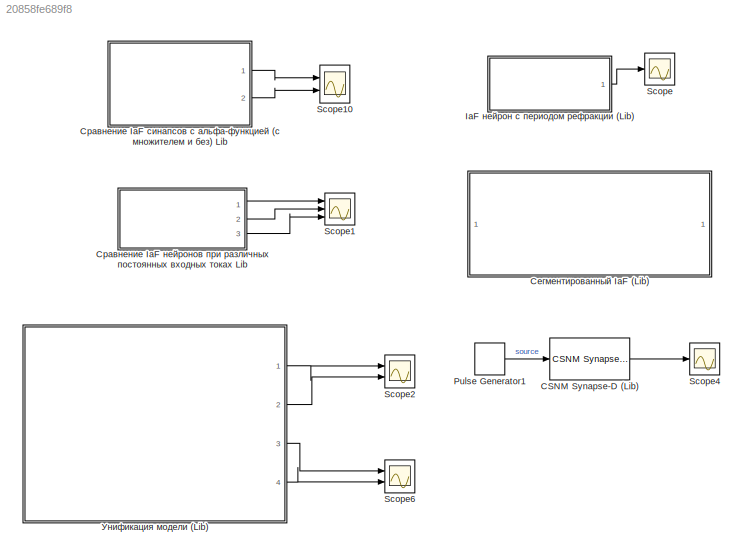
MODEL slx_20858fe689f8
KIND model
CONFIG AbsTol = auto
CONFIG EnableMultiTasking = off
CONFIG FixedStep = auto
CONFIG MaxStep = auto
CONFIG MinStep = auto
CONFIG RelTol = 1e-3
CONFIG SampleTimeConstraint = Unconstrained
CONFIG SolverName = VariableStepAuto
CONFIG StartTime = 0.0
CONFIG StopTime = 0.4
BLOCK [Reference] CSNM Synapse-D (Lib)  REF=NeuroModelerLibrary/Neuron Elements/CSNM Synapse-D
  Ports = [1, 1]
  SourceBlock = NeuroModelerLibrary/Neuron Elements/CSNM Synapse-D
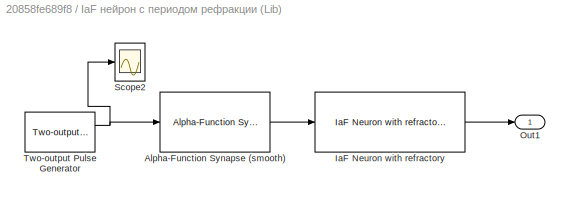
BLOCK [SubSystem] IaF нейрон с периодом рефракции (Lib)
  Ports = [0, 1]
  RequestExecContextInheritance = off
BLOCK [Reference] IaF нейрон с периодом рефракции (Lib)/Alpha-Function Synapse (smooth)  REF=NeuroModelerLibrary/Classic Models/Alpha-Function Synapse (smooth)
  Ports = [1, 1]
  SourceBlock = NeuroModelerLibrary/Classic Models/Alpha-Function Synapse (smooth)
BLOCK [Reference] IaF нейрон с периодом рефракции (Lib)/IaF Neuron with refractory  REF=NeuroModelerLibrary/Classic Models/IaF Neuron with refractory
  Ports = [1, 1]
  SourceBlock = NeuroModelerLibrary/Classic Models/IaF Neuron with refractory
BLOCK [Outport] IaF нейрон с периодом рефракции (Lib)/Out1
BLOCK [Scope] IaF нейрон с периодом рефракции (Lib)/Scope2
  Floating = off
  NumInputPorts = 1
  Ports = [1]
  ScopeSpecificationString = Simulink.scopes.TimeScopeBlockCfg('CurrentConfiguration', extmgr.ConfigurationSet(extmgr.Configuration('Core','General UI',true),extmgr.Configuration('Core','Source UI',true),extmgr.Configuration('Sources','WiredSimulink',true,'DataLoggingVariableName','ScopeData4'),extmgr.Configuration('Visuals','Time Domain',true,'SerializedDisplays',{struct('MinYLimReal','-0.125','MaxYLimReal','1.125','YLabelRe...<+1499ch>
BLOCK [Reference] IaF нейрон с периодом рефракции (Lib)/Two-output Pulse Generator  REF=NeuroModelerLibrary/Support/Two-output
Pulse Generator
  Ports = [0, 2]
  SourceBlock = NeuroModelerLibrary/Support/Two-output\nPulse Generator
BLOCK [DiscretePulseGenerator] Pulse Generator1
  Period = 0.3
  Ports = [0, 1]
  PulseType = Time based
BLOCK [Scope] Scope
  Floating = off
  NumInputPorts = 1
  Ports = [1]
  ScopeSpecificationString = Simulink.scopes.TimeScopeBlockCfg('CurrentConfiguration', extmgr.ConfigurationSet(extmgr.Configuration('Core','General UI',true),extmgr.Configuration('Core','Source UI',true),extmgr.Configuration('Sources','WiredSimulink',true,'DataLoggingVariableName','ScopeData1'),extmgr.Configuration('Visuals','Time Domain',true,'SerializedDisplays',{struct('MinYLimReal','-0.07187','MaxYLimReal','-0.05313','YLa...<+1504ch>
BLOCK [Scope] Scope1
  Commented = on
  Floating = off
  NumInputPorts = 3
  Ports = [3]
  ScopeSpecificationString = Simulink.scopes.TimeScopeBlockCfg('CurrentConfiguration', extmgr.ConfigurationSet(extmgr.Configuration('Core','General UI',true),extmgr.Configuration('Core','Source UI',true),extmgr.Configuration('Sources','WiredSimulink',true,'DataLoggingVariableName','ScopeData2','DataLogging',true,'DataLoggingSaveFormat','StructureWithTime'),extmgr.Configuration('Visuals','Time Domain',true,'SerializedDisplays'...<+3115ch>
BLOCK [Scope] Scope10
  Commented = on
  Floating = off
  NumInputPorts = 2
  Ports = [2]
  ScopeSpecificationString = Simulink.scopes.TimeScopeBlockCfg('CurrentConfiguration', extmgr.ConfigurationSet(extmgr.Configuration('Core','General UI',true),extmgr.Configuration('Core','Source UI',true),extmgr.Configuration('Sources','WiredSimulink',true,'DataLoggingVariableName','ScopeData3'),extmgr.Configuration('Visuals','Time Domain',true,'SerializedDisplays',{struct('MinYLimReal','-0.00000000000011','MaxYLimReal','0.000...<+1654ch>
BLOCK [Scope] Scope2
  Commented = on
  Floating = off
  NumInputPorts = 2
  Ports = [2]
  ScopeSpecificationString = Simulink.scopes.TimeScopeBlockCfg('CurrentConfiguration', extmgr.ConfigurationSet(extmgr.Configuration('Core','General UI',true),extmgr.Configuration('Core','Source UI',true),extmgr.Configuration('Sources','WiredSimulink',true,'DataLoggingVariableName','ScopeData9'),extmgr.Configuration('Visuals','Time Domain',true,'SerializedDisplays',{struct('MinYLimReal','-0.141','MaxYLimReal','0.01567','YLabel...<+1479ch>
BLOCK [Scope] Scope4
  Floating = off
  NumInputPorts = 1
  Ports = [1]
  ScopeSpecificationString = Simulink.scopes.TimeScopeBlockCfg('CurrentConfiguration', extmgr.ConfigurationSet(extmgr.Configuration('Core','General UI',true),extmgr.Configuration('Core','Source UI',true),extmgr.Configuration('Sources','WiredSimulink',true,'DataLoggingVariableName','ScopeData21'),extmgr.Configuration('Visuals','Time Domain',true,'SerializedDisplays',{struct('MinYLimReal','-0.0000000003','MaxYLimReal','0.000000...<+1466ch>
BLOCK [Scope] Scope6
  Commented = on
  Floating = off
  NumInputPorts = 2
  Ports = [2]
  ScopeSpecificationString = Simulink.scopes.TimeScopeBlockCfg('CurrentConfiguration', extmgr.ConfigurationSet(extmgr.Configuration('Core','General UI',true),extmgr.Configuration('Core','Source UI',true),extmgr.Configuration('Sources','WiredSimulink',true,'DataLoggingVariableName','ScopeData12'),extmgr.Configuration('Visuals','Time Domain',true,'SerializedDisplays',{struct('MinYLimReal','-0.19157','MaxYLimReal','0.02129','YLa...<+1537ch>
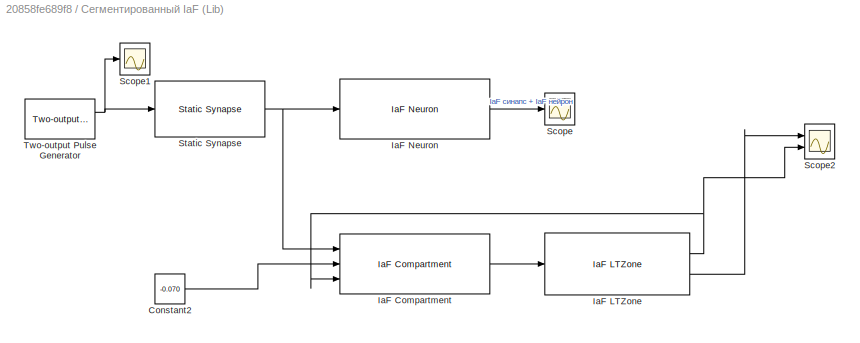
BLOCK [SubSystem] Сегментированный IaF (Lib)
  Commented = on
  Ports = []
  RequestExecContextInheritance = off
BLOCK [Constant] Сегментированный IaF (Lib)/Constant2
  Value = -0.070
BLOCK [Reference] Сегментированный IaF (Lib)/IaF Compartment  REF=NeuroModelerLibrary/Neuron Elements/IaF Compartment
  Ports = [3, 1]
  SourceBlock = NeuroModelerLibrary/Neuron Elements/IaF Compartment
BLOCK [Reference] Сегментированный IaF (Lib)/IaF LTZone  REF=NeuroModelerLibrary/Neuron Elements/IaF LTZone
  Ports = [1, 2]
  SourceBlock = NeuroModelerLibrary/Neuron Elements/IaF LTZone
BLOCK [Reference] Сегментированный IaF (Lib)/IaF Neuron  REF=NeuroModelerLibrary/Classic Models/IaF Neuron
  Ports = [1, 1]
  SourceBlock = NeuroModelerLibrary/Classic Models/IaF Neuron
BLOCK [Scope] Сегментированный IaF (Lib)/Scope
  Floating = off
  NumInputPorts = 1
  Ports = [1]
  ScopeSpecificationString = Simulink.scopes.TimeScopeBlockCfg('CurrentConfiguration', extmgr.ConfigurationSet(extmgr.Configuration('Core','General UI',true),extmgr.Configuration('Core','Source UI',true),extmgr.Configuration('Sources','WiredSimulink',true,'DataLoggingVariableName','ScopeData6'),extmgr.Configuration('Visuals','Time Domain',true,'SerializedDisplays',{struct('MinYLimReal','-0.10562','MaxYLimReal','-0.04938','YLa...<+1384ch>
BLOCK [Scope] Сегментированный IaF (Lib)/Scope1
  Floating = off
  NumInputPorts = 1
  Ports = [1]
  ScopeSpecificationString = Simulink.scopes.TimeScopeBlockCfg('CurrentConfiguration', extmgr.ConfigurationSet(extmgr.Configuration('Core','General UI',true),extmgr.Configuration('Core','Source UI',true),extmgr.Configuration('Sources','WiredSimulink',true,'DataLoggingVariableName','ScopeData7'),extmgr.Configuration('Visuals','Time Domain',true,'SerializedDisplays',{struct('MinYLimReal','-0.125','MaxYLimReal','1.125','YLabelRe...<+1476ch>
BLOCK [Scope] Сегментированный IaF (Lib)/Scope2
  Floating = off
  NumInputPorts = 2
  Ports = [2]
  ScopeSpecificationString = Simulink.scopes.TimeScopeBlockCfg('CurrentConfiguration', extmgr.ConfigurationSet(extmgr.Configuration('Core','General UI',true),extmgr.Configuration('Core','Source UI',true),extmgr.Configuration('Sources','WiredSimulink',true,'DataLoggingVariableName','ScopeData8'),extmgr.Configuration('Visuals','Time Domain',true,'SerializedDisplays',{struct('MinYLimReal','-0.10562','MaxYLimReal','-0.04938','YLa...<+2007ch>
BLOCK [Reference] Сегментированный IaF (Lib)/Static Synapse  REF=NeuroModelerLibrary/Classic Models/Static Synapse
  Ports = [1, 1]
  SourceBlock = NeuroModelerLibrary/Classic Models/Static Synapse
BLOCK [Reference] Сегментированный IaF (Lib)/Two-output Pulse Generator  REF=NeuroModelerLibrary/Support/Two-output
Pulse Generator
  Ports = [0, 2]
  SourceBlock = NeuroModelerLibrary/Support/Two-output\nPulse Generator
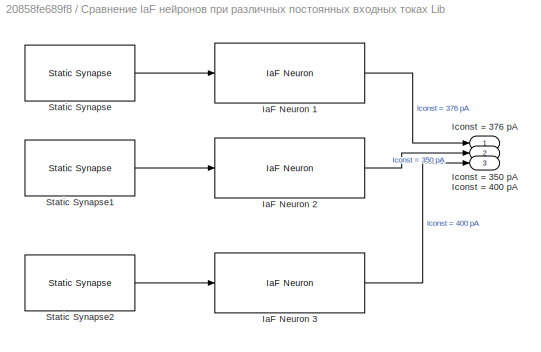
BLOCK [SubSystem] Сравнение IaF нейронов при различных постоянных входных токах Lib
  Commented = on
  Ports = [0, 3]
  RequestExecContextInheritance = off
BLOCK [Reference] Сравнение IaF нейронов при различных постоянных входных токах Lib/IaF Neuron 1  REF=NeuroModelerLibrary/Classic Models/IaF Neuron
  Ports = [1, 1]
  SourceBlock = NeuroModelerLibrary/Classic Models/IaF Neuron
BLOCK [Reference] Сравнение IaF нейронов при различных постоянных входных токах Lib/IaF Neuron 2  REF=NeuroModelerLibrary/Classic Models/IaF Neuron
  Ports = [1, 1]
  SourceBlock = NeuroModelerLibrary/Classic Models/IaF Neuron
BLOCK [Reference] Сравнение IaF нейронов при различных постоянных входных токах Lib/IaF Neuron 3  REF=NeuroModelerLibrary/Classic Models/IaF Neuron
  Ports = [1, 1]
  SourceBlock = NeuroModelerLibrary/Classic Models/IaF Neuron
BLOCK [Outport] Сравнение IaF нейронов при различных постоянных входных токах Lib/Iconst = 350 pA
  Port = 2
BLOCK [Outport] Сравнение IaF нейронов при различных постоянных входных токах Lib/Iconst = 376 pA
BLOCK [Outport] Сравнение IaF нейронов при различных постоянных входных токах Lib/Iconst = 400 pA
  Port = 3
BLOCK [Reference] Сравнение IaF нейронов при различных постоянных входных токах Lib/Static Synapse  REF=NeuroModelerLibrary/Classic Models/Static Synapse
  Ports = [1, 1]
  SourceBlock = NeuroModelerLibrary/Classic Models/Static Synapse
BLOCK [Reference] Сравнение IaF нейронов при различных постоянных входных токах Lib/Static Synapse1  REF=NeuroModelerLibrary/Classic Models/Static Synapse
  Ports = [1, 1]
  SourceBlock = NeuroModelerLibrary/Classic Models/Static Synapse
BLOCK [Reference] Сравнение IaF нейронов при различных постоянных входных токах Lib/Static Synapse2  REF=NeuroModelerLibrary/Classic Models/Static Synapse
  Ports = [1, 1]
  SourceBlock = NeuroModelerLibrary/Classic Models/Static Synapse
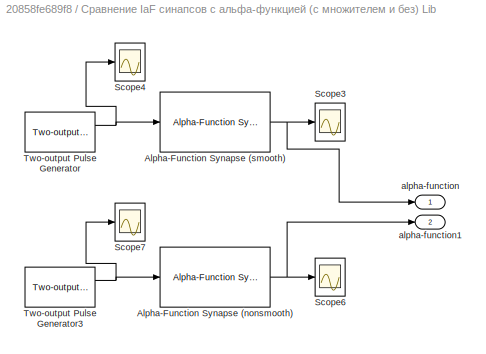
BLOCK [SubSystem] Сравнение IaF синапсов с альфа-функцией (с множителем и без) Lib
  Commented = on
  Ports = [0, 2]
  RequestExecContextInheritance = off
BLOCK [Reference] Сравнение IaF синапсов с альфа-функцией (с множителем и без) Lib/Alpha-Function Synapse (nonsmooth)  REF=NeuroModelerLibrary/Classic Models/Alpha-Function Synapse (nonsmooth)
  Ports = [1, 1]
  SourceBlock = NeuroModelerLibrary/Classic Models/Alpha-Function Synapse (nonsmooth)
BLOCK [Reference] Сравнение IaF синапсов с альфа-функцией (с множителем и без) Lib/Alpha-Function Synapse (smooth)  REF=NeuroModelerLibrary/Classic Models/Alpha-Function Synapse (smooth)
  Ports = [1, 1]
  SourceBlock = NeuroModelerLibrary/Classic Models/Alpha-Function Synapse (smooth)
BLOCK [Scope] Сравнение IaF синапсов с альфа-функцией (с множителем и без) Lib/Scope3
  Floating = off
  NumInputPorts = 1
  Ports = [1]
  ScopeSpecificationString = Simulink.scopes.TimeScopeBlockCfg('CurrentConfiguration', extmgr.ConfigurationSet(extmgr.Configuration('Core','General UI',true),extmgr.Configuration('Core','Source UI',true),extmgr.Configuration('Sources','WiredSimulink',true,'DataLoggingVariableName','ScopeData5','DataLogging',true,'DataLoggingSaveFormat','StructureWithTime'),extmgr.Configuration('Visuals','Time Domain',true,'SerializedDisplays'...<+1535ch>
BLOCK [Scope] Сравнение IaF синапсов с альфа-функцией (с множителем и без) Lib/Scope4
  Floating = off
  NumInputPorts = 1
  Ports = [1]
  ScopeSpecificationString = Simulink.scopes.TimeScopeBlockCfg('CurrentConfiguration', extmgr.ConfigurationSet(extmgr.Configuration('Core','General UI',true),extmgr.Configuration('Core','Source UI',true),extmgr.Configuration('Sources','WiredSimulink',true,'DataLoggingVariableName','ScopeData6'),extmgr.Configuration('Visuals','Time Domain',true,'SerializedDisplays',{struct('MinYLimReal','-0.125','MaxYLimReal','1.125','YLabelRe...<+1499ch>
BLOCK [Scope] Сравнение IaF синапсов с альфа-функцией (с множителем и без) Lib/Scope6
  Floating = off
  NumInputPorts = 1
  Ports = [1]
  ScopeSpecificationString = Simulink.scopes.TimeScopeBlockCfg('CurrentConfiguration', extmgr.ConfigurationSet(extmgr.Configuration('Core','General UI',true),extmgr.Configuration('Core','Source UI',true),extmgr.Configuration('Sources','WiredSimulink',true,'DataLoggingVariableName','ScopeData7','DataLogging',true,'DataLoggingSaveFormat','StructureWithTime'),extmgr.Configuration('Visuals','Time Domain',true,'SerializedDisplays'...<+1538ch>
BLOCK [Scope] Сравнение IaF синапсов с альфа-функцией (с множителем и без) Lib/Scope7
  Floating = off
  NumInputPorts = 1
  Ports = [1]
  ScopeSpecificationString = Simulink.scopes.TimeScopeBlockCfg('CurrentConfiguration', extmgr.ConfigurationSet(extmgr.Configuration('Core','General UI',true),extmgr.Configuration('Core','Source UI',true),extmgr.Configuration('Sources','WiredSimulink',true,'DataLoggingVariableName','ScopeData8'),extmgr.Configuration('Visuals','Time Domain',true,'SerializedDisplays',{struct('MinYLimReal','-0.125','MaxYLimReal','1.125','YLabelRe...<+1499ch>
BLOCK [Reference] Сравнение IaF синапсов с альфа-функцией (с множителем и без) Lib/Two-output Pulse Generator  REF=NeuroModelerLibrary/Support/Two-output
Pulse Generator
  Ports = [0, 2]
  SourceBlock = NeuroModelerLibrary/Support/Two-output\nPulse Generator
BLOCK [Reference] Сравнение IaF синапсов с альфа-функцией (с множителем и без) Lib/Two-output Pulse Generator3  REF=NeuroModelerLibrary/Support/Two-output
Pulse Generator
  Ports = [0, 2]
  SourceBlock = NeuroModelerLibrary/Support/Two-output\nPulse Generator
BLOCK [Outport] Сравнение IaF синапсов с альфа-функцией (с множителем и без) Lib/alpha-function
BLOCK [Outport] Сравнение IaF синапсов с альфа-функцией (с множителем и без) Lib/alpha-function1
  Port = 2
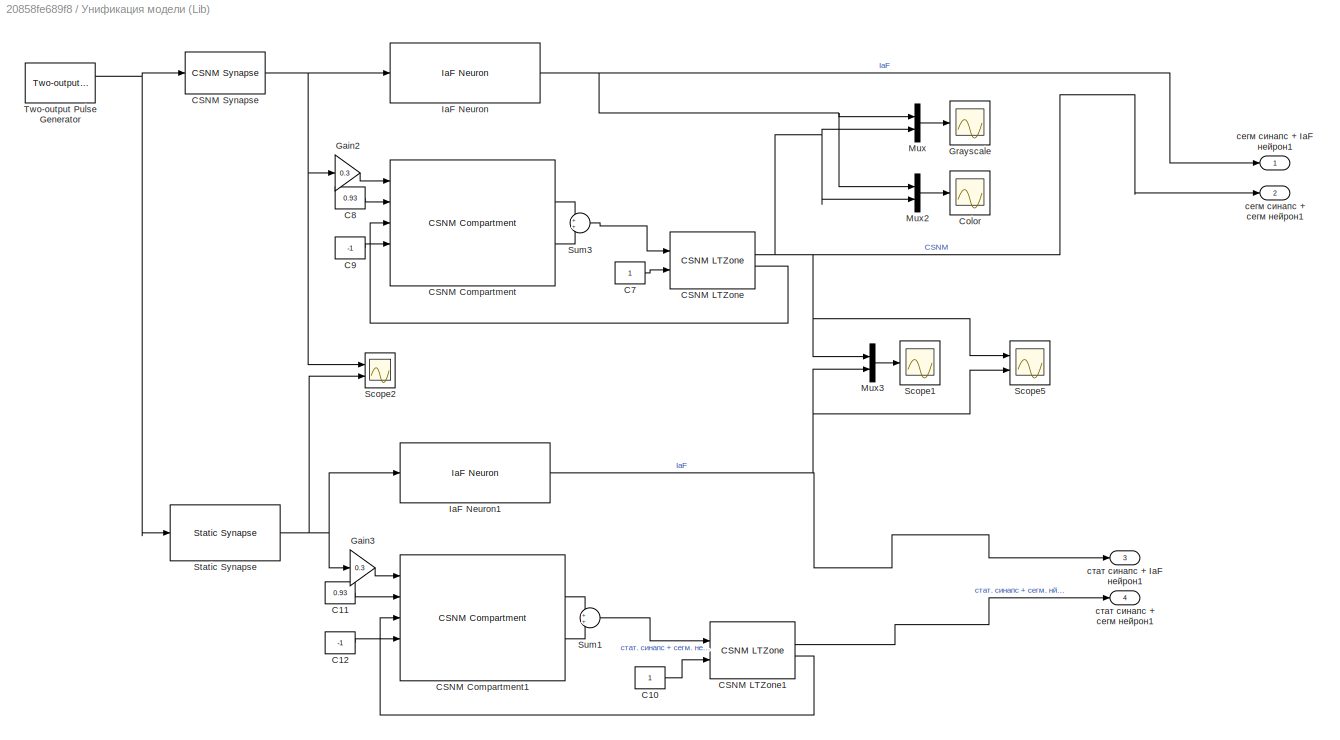
BLOCK [SubSystem] Унификация модели (Lib)
  Commented = on
  Ports = [0, 4]
  RequestExecContextInheritance = off
BLOCK [Constant] Унификация модели (Lib)/C10
  NameLocation = top
BLOCK [Constant] Унификация модели (Lib)/C11
  Value = 0.93
BLOCK [Constant] Унификация модели (Lib)/C12
  Value = -1
BLOCK [Constant] Унификация модели (Lib)/C7
  NameLocation = top
BLOCK [Constant] Унификация модели (Lib)/C8
  Value = 0.93
BLOCK [Constant] Унификация модели (Lib)/C9
  Value = -1
BLOCK [Reference] Унификация модели (Lib)/CSNM Compartment  REF=NeuroModelerLibrary/Neuron Elements/CSNM Compartment
  Ports = [5, 2]
  SourceBlock = NeuroModelerLibrary/Neuron Elements/CSNM Compartment
BLOCK [Reference] Унификация модели (Lib)/CSNM Compartment1  REF=NeuroModelerLibrary/Neuron Elements/CSNM Compartment
  Ports = [5, 2]
  SourceBlock = NeuroModelerLibrary/Neuron Elements/CSNM Compartment
BLOCK [Reference] Унификация модели (Lib)/CSNM LTZone  REF=NeuroModelerLibrary/Neuron Elements/CSNM LTZone
  Ports = [2, 4]
  SourceBlock = NeuroModelerLibrary/Neuron Elements/CSNM LTZone
  SourceType = Ion pump
BLOCK [Reference] Унификация модели (Lib)/CSNM LTZone1  REF=NeuroModelerLibrary/Neuron Elements/CSNM LTZone
  Ports = [2, 4]
  SourceBlock = NeuroModelerLibrary/Neuron Elements/CSNM LTZone
  SourceType = Ion pump
BLOCK [Reference] Унификация модели (Lib)/CSNM Synapse  REF=NeuroModelerLibrary/Neuron Elements/CSNM Synapse
  Ports = [1, 1]
  SourceBlock = NeuroModelerLibrary/Neuron Elements/CSNM Synapse
BLOCK [Scope] Унификация модели (Lib)/Color
  Floating = off
  NumInputPorts = 1
  Ports = [1]
  ScopeSpecificationString = Simulink.scopes.TimeScopeBlockCfg('CurrentConfiguration', extmgr.ConfigurationSet(extmgr.Configuration('Core','General UI',true,'FigureColor',[1 1 1]),extmgr.Configuration('Core','Source UI',true),extmgr.Configuration('Sources','WiredSimulink',true,'DataLoggingVariableName','ScopeData1'),extmgr.Configuration('Visuals','Time Domain',true,'SerializedDisplays',{struct('MinYLimReal','-0.104','MaxYLimR...<+1927ch>
BLOCK [Gain] Унификация модели (Lib)/Gain2
  Gain = 0.3
BLOCK [Gain] Унификация модели (Lib)/Gain3
  Gain = 0.3
BLOCK [Scope] Унификация модели (Lib)/Grayscale
  Floating = off
  NumInputPorts = 1
  Ports = [1]
  ScopeSpecificationString = Simulink.scopes.TimeScopeBlockCfg('CurrentConfiguration', extmgr.ConfigurationSet(extmgr.Configuration('Core','General UI',true,'FigureColor',[1 1 1]),extmgr.Configuration('Core','Source UI',true),extmgr.Configuration('Sources','WiredSimulink',true,'DataLoggingVariableName','ScopeData2'),extmgr.Configuration('Visuals','Time Domain',true,'SerializedDisplays',{struct('MinYLimReal','-0.104','MaxYLimR...<+1903ch>
BLOCK [Reference] Унификация модели (Lib)/IaF Neuron  REF=NeuroModelerLibrary/Classic Models/IaF Neuron
  Ports = [1, 1]
  SourceBlock = NeuroModelerLibrary/Classic Models/IaF Neuron
BLOCK [Reference] Унификация модели (Lib)/IaF Neuron1  REF=NeuroModelerLibrary/Classic Models/IaF Neuron
  Ports = [1, 1]
  SourceBlock = NeuroModelerLibrary/Classic Models/IaF Neuron
BLOCK [Mux] Унификация модели (Lib)/Mux
  DisplayOption = bar
  Inputs = 2
  Ports = [2, 1]
BLOCK [Mux] Унификация модели (Lib)/Mux2
  DisplayOption = bar
  Inputs = 2
  Ports = [2, 1]
BLOCK [Mux] Унификация модели (Lib)/Mux3
  DisplayOption = bar
  Inputs = 2
  Ports = [2, 1]
BLOCK [Scope] Унификация модели (Lib)/Scope1
  Floating = off
  NumInputPorts = 1
  Ports = [1]
  ScopeSpecificationString = Simulink.scopes.TimeScopeBlockCfg('CurrentConfiguration', extmgr.ConfigurationSet(extmgr.Configuration('Core','General UI',true,'FigureColor',[1 1 1]),extmgr.Configuration('Core','Source UI',true),extmgr.Configuration('Sources','WiredSimulink',true,'DataLoggingVariableName','ScopeData3'),extmgr.Configuration('Visuals','Time Domain',true,'SerializedDisplays',{struct('MinYLimReal','-0.104','MaxYLimR...<+1891ch>
BLOCK [Scope] Унификация модели (Lib)/Scope2
  Floating = off
  NumInputPorts = 2
  Ports = [2]
  ScopeSpecificationString = Simulink.scopes.TimeScopeBlockCfg('CurrentConfiguration', extmgr.ConfigurationSet(extmgr.Configuration('Core','General UI',true),extmgr.Configuration('Core','Source UI',true),extmgr.Configuration('Sources','WiredSimulink',true,'DataLoggingVariableName','ScopeData4'),extmgr.Configuration('Visuals','Time Domain',true,'SerializedDisplays',{struct('MinYLimReal','-0.000000003','MaxYLimReal','0.00000002...<+1484ch>
BLOCK [Scope] Унификация модели (Lib)/Scope5
  Floating = off
  NumInputPorts = 2
  Ports = [2]
  ScopeSpecificationString = Simulink.scopes.TimeScopeBlockCfg('CurrentConfiguration', extmgr.ConfigurationSet(extmgr.Configuration('Core','General UI',true,'FigureColor',[1 1 1],'ShowStatusbar',false),extmgr.Configuration('Core','Source UI',true),extmgr.Configuration('Sources','WiredSimulink',true,'DataLoggingVariableName','ScopeData5'),extmgr.Configuration('Visuals','Time Domain',true,'SerializedDisplays',{struct('MinYLimRe...<+2252ch>
BLOCK [Reference] Унификация модели (Lib)/Static Synapse  REF=NeuroModelerLibrary/Classic Models/Static Synapse
  Ports = [1, 1]
  SourceBlock = NeuroModelerLibrary/Classic Models/Static Synapse
BLOCK [Sum] Унификация модели (Lib)/Sum1
  InputSameDT = on
  OutDataTypeStr = Inherit: Same as first input
  Ports = [2, 1]
  SaturateOnIntegerOverflow = on
BLOCK [Sum] Унификация модели (Lib)/Sum3
  InputSameDT = on
  OutDataTypeStr = Inherit: Same as first input
  Ports = [2, 1]
  SaturateOnIntegerOverflow = on
BLOCK [Reference] Унификация модели (Lib)/Two-output Pulse Generator  REF=NeuroModelerLibrary/Support/Two-output
Pulse Generator
  Ports = [0, 2]
  SourceBlock = NeuroModelerLibrary/Support/Two-output\nPulse Generator
BLOCK [Outport] Унификация модели (Lib)/сегм синапс + IaF нейрон1
BLOCK [Outport] Унификация модели (Lib)/сегм синапс + сегм нейрон1
  Port = 2
BLOCK [Outport] Унификация модели (Lib)/стат синапс + IaF нейрон1
  Port = 3
BLOCK [Outport] Унификация модели (Lib)/стат синапс + сегм нейрон1
  Port = 4
LINE CSNM Synapse-D (Lib):1 -> Scope4:1
LINE IaF нейрон с периодом рефракции (Lib)/Alpha-Function Synapse (smooth):1 -> IaF нейрон с периодом рефракции (Lib)/IaF Neuron with refractory:1
LINE IaF нейрон с периодом рефракции (Lib)/IaF Neuron with refractory:1 -> IaF нейрон с периодом рефракции (Lib)/Out1:1
NET IaF нейрон с периодом рефракции (Lib)/Two-output Pulse Generator:1 -> IaF нейрон с периодом рефракции (Lib)/Alpha-Function Synapse (smooth):1, IaF нейрон с периодом рефракции (Lib)/Scope2:1
LINE IaF нейрон с периодом рефракции (Lib):1 -> Scope:1
LINE Pulse Generator1:1 -> CSNM Synapse-D (Lib):1
LINE Сегментированный IaF (Lib)/Constant2:1 -> Сегментированный IaF (Lib)/IaF Compartment:2
LINE Сегментированный IaF (Lib)/IaF Compartment:1 -> Сегментированный IaF (Lib)/IaF LTZone:1
NET Сегментированный IaF (Lib)/IaF LTZone:1 -> Сегментированный IaF (Lib)/IaF Compartment:3, Сегментированный IaF (Lib)/Scope2:2
LINE Сегментированный IaF (Lib)/IaF LTZone:2 -> Сегментированный IaF (Lib)/Scope2:1
LINE Сегментированный IaF (Lib)/IaF Neuron:1 -> Сегментированный IaF (Lib)/Scope:1
NET Сегментированный IaF (Lib)/Static Synapse:1 -> Сегментированный IaF (Lib)/IaF Compartment:1, Сегментированный IaF (Lib)/IaF Neuron:1
NET Сегментированный IaF (Lib)/Two-output Pulse Generator:1 -> Сегментированный IaF (Lib)/Scope1:1, Сегментированный IaF (Lib)/Static Synapse:1
LINE Сравнение IaF нейронов при различных постоянных входных токах Lib/IaF Neuron 1:1 -> Сравнение IaF нейронов при различных постоянных входных токах Lib/Iconst = 376 pA:1
LINE Сравнение IaF нейронов при различных постоянных входных токах Lib/IaF Neuron 2:1 -> Сравнение IaF нейронов при различных постоянных входных токах Lib/Iconst = 350 pA:1
LINE Сравнение IaF нейронов при различных постоянных входных токах Lib/IaF Neuron 3:1 -> Сравнение IaF нейронов при различных постоянных входных токах Lib/Iconst = 400 pA:1
LINE Сравнение IaF нейронов при различных постоянных входных токах Lib/Static Synapse1:1 -> Сравнение IaF нейронов при различных постоянных входных токах Lib/IaF Neuron 2:1
LINE Сравнение IaF нейронов при различных постоянных входных токах Lib/Static Synapse2:1 -> Сравнение IaF нейронов при различных постоянных входных токах Lib/IaF Neuron 3:1
LINE Сравнение IaF нейронов при различных постоянных входных токах Lib/Static Synapse:1 -> Сравнение IaF нейронов при различных постоянных входных токах Lib/IaF Neuron 1:1
LINE Сравнение IaF нейронов при различных постоянных входных токах Lib:1 -> Scope1:1
LINE Сравнение IaF нейронов при различных постоянных входных токах Lib:2 -> Scope1:2
LINE Сравнение IaF нейронов при различных постоянных входных токах Lib:3 -> Scope1:3
NET Сравнение IaF синапсов с альфа-функцией (с множителем и без) Lib/Alpha-Function Synapse (nonsmooth):1 -> Сравнение IaF синапсов с альфа-функцией (с множителем и без) Lib/Scope6:1, Сравнение IaF синапсов с альфа-функцией (с множителем и без) Lib/alpha-function1:1
NET Сравнение IaF синапсов с альфа-функцией (с множителем и без) Lib/Alpha-Function Synapse (smooth):1 -> Сравнение IaF синапсов с альфа-функцией (с множителем и без) Lib/Scope3:1, Сравнение IaF синапсов с альфа-функцией (с множителем и без) Lib/alpha-function:1
NET Сравнение IaF синапсов с альфа-функцией (с множителем и без) Lib/Two-output Pulse Generator3:1 -> Сравнение IaF синапсов с альфа-функцией (с множителем и без) Lib/Alpha-Function Synapse (nonsmooth):1, Сравнение IaF синапсов с альфа-функцией (с множителем и без) Lib/Scope7:1
NET Сравнение IaF синапсов с альфа-функцией (с множителем и без) Lib/Two-output Pulse Generator:1 -> Сравнение IaF синапсов с альфа-функцией (с множителем и без) Lib/Alpha-Function Synapse (smooth):1, Сравнение IaF синапсов с альфа-функцией (с множителем и без) Lib/Scope4:1
LINE Сравнение IaF синапсов с альфа-функцией (с множителем и без) Lib:1 -> Scope10:1
LINE Сравнение IaF синапсов с альфа-функцией (с множителем и без) Lib:2 -> Scope10:2
LINE Унификация модели (Lib)/C10:1 -> Унификация модели (Lib)/CSNM LTZone1:2
LINE Унификация модели (Lib)/C11:1 -> Унификация модели (Lib)/CSNM Compartment1:2
LINE Унификация модели (Lib)/C12:1 -> Унификация модели (Lib)/CSNM Compartment1:4
LINE Унификация модели (Lib)/C7:1 -> Унификация модели (Lib)/CSNM LTZone:2
LINE Унификация модели (Lib)/C8:1 -> Унификация модели (Lib)/CSNM Compartment:2
LINE Унификация модели (Lib)/C9:1 -> Унификация модели (Lib)/CSNM Compartment:4
LINE Унификация модели (Lib)/CSNM Compartment1:1 -> Унификация модели (Lib)/Sum1:1
LINE Унификация модели (Lib)/CSNM Compartment1:2 -> Унификация модели (Lib)/Sum1:2
LINE Унификация модели (Lib)/CSNM Compartment:1 -> Унификация модели (Lib)/Sum3:1
LINE Унификация модели (Lib)/CSNM Compartment:2 -> Унификация модели (Lib)/Sum3:2
LINE Унификация модели (Lib)/CSNM LTZone1:2 -> Унификация модели (Lib)/стат синапс + сегм нейрон1:1
LINE Унификация модели (Lib)/CSNM LTZone1:3 -> Унификация модели (Lib)/CSNM Compartment1:3
NET Унификация модели (Lib)/CSNM LTZone:2 -> Унификация модели (Lib)/Mux2:2, Унификация модели (Lib)/Mux3:1, Унификация модели (Lib)/Mux:2, Унификация модели (Lib)/Scope5:1, Унификация модели (Lib)/сегм синапс + сегм нейрон1:1
LINE Унификация модели (Lib)/CSNM LTZone:3 -> Унификация модели (Lib)/CSNM Compartment:3
NET Унификация модели (Lib)/CSNM Synapse:1 -> Унификация модели (Lib)/Gain2:1, Унификация модели (Lib)/IaF Neuron:1, Унификация модели (Lib)/Scope2:1
LINE Унификация модели (Lib)/Gain2:1 -> Унификация модели (Lib)/CSNM Compartment:1
LINE Унификация модели (Lib)/Gain3:1 -> Унификация модели (Lib)/CSNM Compartment1:1
NET Унификация модели (Lib)/IaF Neuron1:1 -> Унификация модели (Lib)/Mux3:2, Унификация модели (Lib)/Scope5:2, Унификация модели (Lib)/стат синапс + IaF нейрон1:1
NET Унификация модели (Lib)/IaF Neuron:1 -> Унификация модели (Lib)/Mux2:1, Унификация модели (Lib)/Mux:1, Унификация модели (Lib)/сегм синапс + IaF нейрон1:1
LINE Унификация модели (Lib)/Mux2:1 -> Унификация модели (Lib)/Color:1
LINE Унификация модели (Lib)/Mux3:1 -> Унификация модели (Lib)/Scope1:1
LINE Унификация модели (Lib)/Mux:1 -> Унификация модели (Lib)/Grayscale:1
NET Унификация модели (Lib)/Static Synapse:1 -> Унификация модели (Lib)/Gain3:1, Унификация модели (Lib)/IaF Neuron1:1, Унификация модели (Lib)/Scope2:2
LINE Унификация модели (Lib)/Sum1:1 -> Унификация модели (Lib)/CSNM LTZone1:1
LINE Унификация модели (Lib)/Sum3:1 -> Унификация модели (Lib)/CSNM LTZone:1
NET Унификация модели (Lib)/Two-output Pulse Generator:1 -> Унификация модели (Lib)/CSNM Synapse:1, Унификация модели (Lib)/Static Synapse:1
LINE Унификация модели (Lib):1 -> Scope2:1
LINE Унификация модели (Lib):2 -> Scope2:2
LINE Унификация модели (Lib):3 -> Scope6:1
LINE Унификация модели (Lib):4 -> Scope6:2
note: NET lines group one-source signal fan-out (src -> all destinations, sorted); 1:1 wires keep LINE
